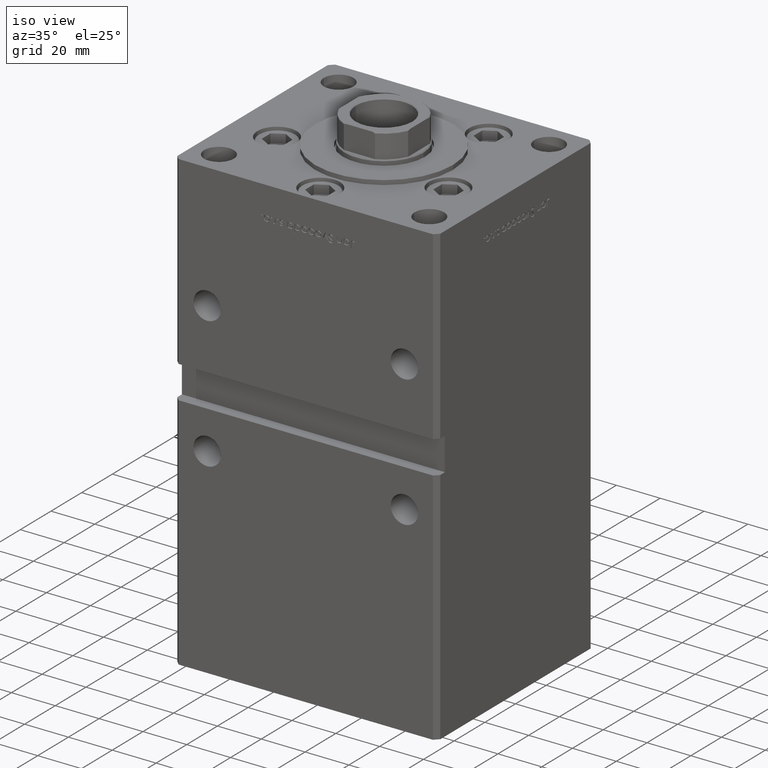
[diagram: clean part render]
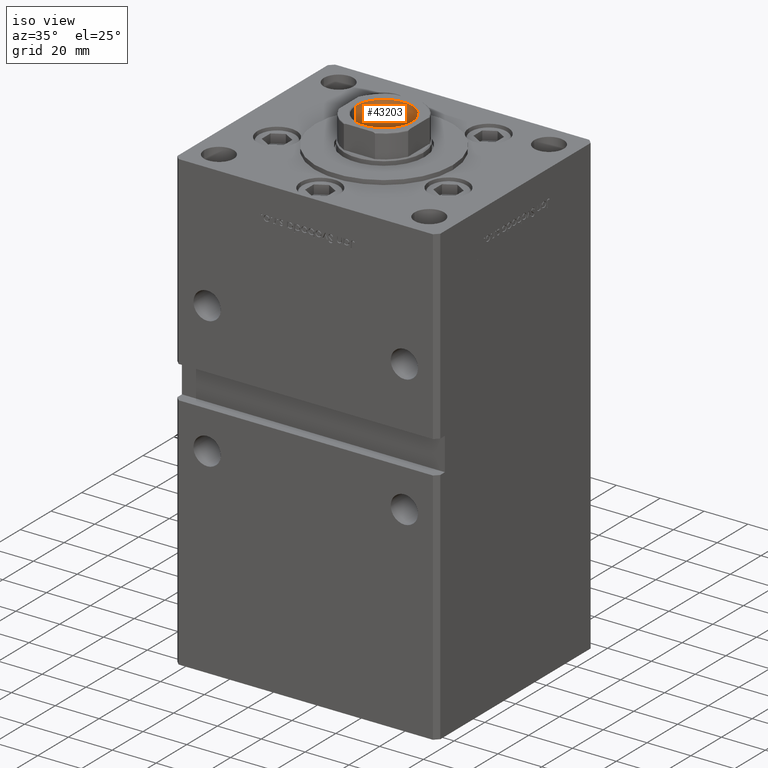
[diagram: same view with one face highlighted and labeled with its STEP entity id]
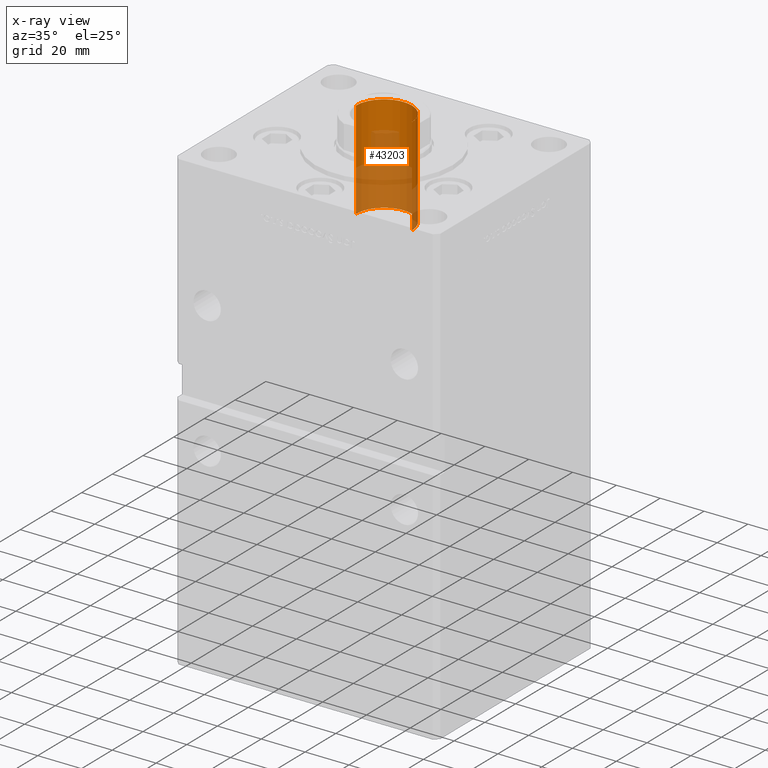
[diagram: x-ray of the same camera — body ghosted, the highlighted face saturated]
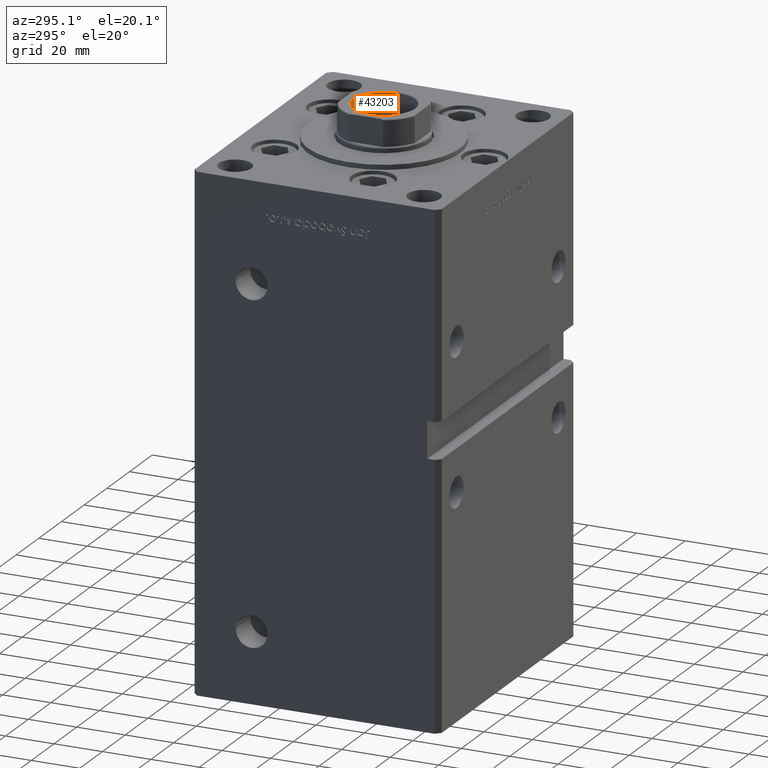
[diagram: same view with one face highlighted and labeled with its STEP entity id]
A machine part, iso view. The second image highlights one B-rep face of the part: STEP entity #43203.
The next image is the same camera in x-ray: the body ghosted, the highlighted face saturated — about 55% of this face is hidden behind the body in this view.
A second angle (auxiliary view) of the same face is appended — the face is thin or edge-on in the first view.
In plain terms, the highlighted cylindrical surface (edge-blend (fillet) strip) has radius 12.75 mm, axis along (0, 0, 1).
Its self-contained STEP definition (entity closure, byte-faithful):
#147 = AXIS2_PLACEMENT_3D ( 'NONE', #48660, #24258, #19692 ) ;
#868 = EDGE_CURVE ( 'NONE', #50579, #39992, #47897, .T. ) ;
#1306 = FACE_OUTER_BOUND ( 'NONE', #43601, .T. ) ;
#2531 = ORIENTED_EDGE ( 'NONE', *, *, #868, .F. ) ;
#3299 = AXIS2_PLACEMENT_3D ( 'NONE', #9371, #13149, #9108 ) ;
#4351 = DIRECTION ( 'NONE',  ( -0.000000000000000000, -0.000000000000000000, 1.000000000000000000 ) ) ;
#4935 = CARTESIAN_POINT ( 'NONE',  ( -12.74999999999999112, 1.561424668912874125E-15, 144.2500000000000000 ) ) ;
#7859 = CIRCLE ( 'NONE', #147, 12.74999999999999467 ) ;
#9108 = DIRECTION ( 'NONE',  ( 1.000000000000000000, 0.000000000000000000, 0.000000000000000000 ) ) ;
#9371 = CARTESIAN_POINT ( 'NONE',  ( 0.000000000000000000, 0.000000000000000000, 189.2500000000000000 ) ) ;
#9563 = DIRECTION ( 'NONE',  ( -0.000000000000000000, -0.000000000000000000, 1.000000000000000000 ) ) ;
#12254 = CARTESIAN_POINT ( 'NONE',  ( -12.74999999999999467, 1.561424668912874519E-15, 188.9499999999999886 ) ) ;
#13149 = DIRECTION ( 'NONE',  ( -0.000000000000000000, -0.000000000000000000, 1.000000000000000000 ) ) ;
#14848 = EDGE_CURVE ( 'NONE', #50579, #27808, #16442, .T. ) ;
#16442 = LINE ( 'NONE', #45107, #42946 ) ;
#17702 = CYLINDRICAL_SURFACE ( 'NONE', #3299, 12.74999999999999467 ) ;
#17933 = AXIS2_PLACEMENT_3D ( 'NONE', #46038, #9563, #33438 ) ;
#19692 = DIRECTION ( 'NONE',  ( 1.000000000000000000, 0.000000000000000000, 0.000000000000000000 ) ) ;
#20157 = CARTESIAN_POINT ( 'NONE',  ( 12.74999999999999467, 0.000000000000000000, 188.9499999999999886 ) ) ;
#20275 = EDGE_CURVE ( 'NONE', #27808, #37306, #7859, .T. ) ;
#22095 = CARTESIAN_POINT ( 'NONE',  ( 12.74999999999999112, 0.000000000000000000, 144.2500000000000000 ) ) ;
#22675 = EDGE_CURVE ( 'NONE', #39992, #37306, #24750, .T. ) ;
#24258 = DIRECTION ( 'NONE',  ( 0.000000000000000000, 0.000000000000000000, 1.000000000000000000 ) ) ;
#24750 = LINE ( 'NONE', #45672, #41372 ) ;
#27808 = VERTEX_POINT ( 'NONE', #20157 ) ;
#28500 = DIRECTION ( 'NONE',  ( -0.000000000000000000, -0.000000000000000000, 1.000000000000000000 ) ) ;
#33438 = DIRECTION ( 'NONE',  ( 1.000000000000000000, 0.000000000000000000, 0.000000000000000000 ) ) ;
#34223 = ORIENTED_EDGE ( 'NONE', *, *, #20275, .T. ) ;
#34603 = ORIENTED_EDGE ( 'NONE', *, *, #22675, .F. ) ;
#37306 = VERTEX_POINT ( 'NONE', #12254 ) ;
#38277 = ORIENTED_EDGE ( 'NONE', *, *, #14848, .T. ) ;
#39992 = VERTEX_POINT ( 'NONE', #4935 ) ;
#41372 = VECTOR ( 'NONE', #4351, 1000.000000000000000 ) ;
#42946 = VECTOR ( 'NONE', #28500, 1000.000000000000000 ) ;
#43203 = ADVANCED_FACE ( 'NONE', ( #1306 ), #17702, .F. ) ;
#43601 = EDGE_LOOP ( 'NONE', ( #34603, #2531, #38277, #34223 ) ) ;
#45107 = CARTESIAN_POINT ( 'NONE',  ( 12.74999999999999467, 0.000000000000000000, 189.2500000000000000 ) ) ;
#45672 = CARTESIAN_POINT ( 'NONE',  ( -12.74999999999999467, 1.561424668912874519E-15, 189.2500000000000000 ) ) ;
#46038 = CARTESIAN_POINT ( 'NONE',  ( 0.000000000000000000, 0.000000000000000000, 144.2500000000000000 ) ) ;
#47897 = CIRCLE ( 'NONE', #17933, 12.74999999999999112 ) ;
#48660 = CARTESIAN_POINT ( 'NONE',  ( 0.000000000000000000, 0.000000000000000000, 188.9499999999999886 ) ) ;
#50579 = VERTEX_POINT ( 'NONE', #22095 ) ;